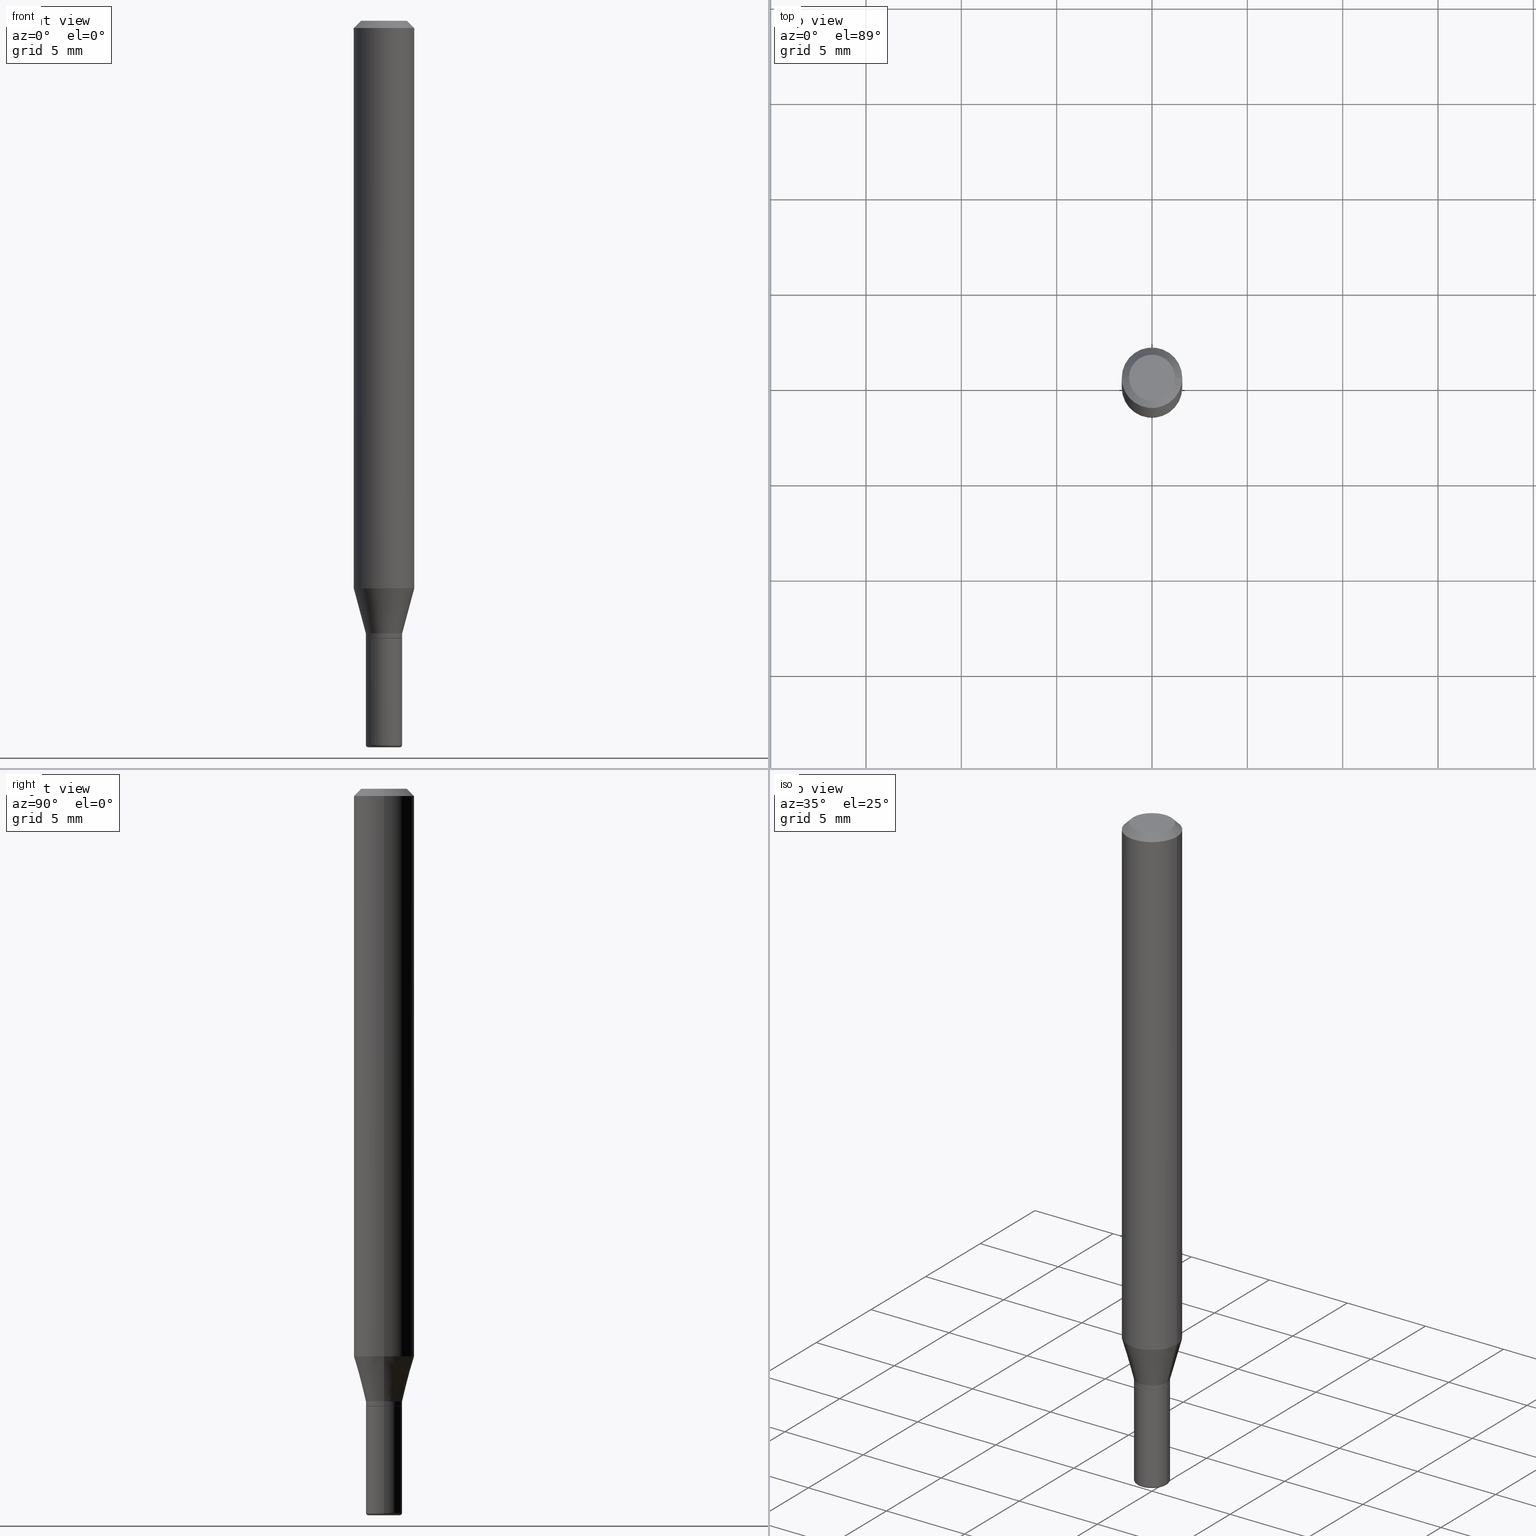
[diagram: canonical four-view strip — front | top / right | iso, engineering-drawing reading convention]
A machine part, canonical four-view strip (front | top / right | iso — engineering-drawing reading convention). The complete STEP part file that produces these views, byte-faithful:
ISO-10303-21;
HEADER;
FILE_DESCRIPTION (( 'STEP AP203' ),
    '1' );
FILE_NAME ('09037.STEP',
    '2024-02-29T21:29:58',
    ( '' ),
    ( '' ),
    'SwSTEP 2.0',
    'SolidWorks 2023',
    '' );
FILE_SCHEMA (( 'CONFIG_CONTROL_DESIGN' ));
ENDSEC;

DATA;
#1 = CARTESIAN_POINT ( 'NONE',  ( 0.000000000000000000, 0.000000000000000000, 0.000000000000000000 ) ) ;
#2 = AXIS2_PLACEMENT_3D ( 'NONE', #246, #204, #446 ) ;
#3 = LOCAL_TIME ( 16, 29, 58.00000000000000000, #504 ) ;
#4 = AXIS2_PLACEMENT_3D ( 'NONE', #106, #7, #511 ) ;
#5 = FACE_OUTER_BOUND ( 'NONE', #501, .T. ) ;
#6 = AXIS2_PLACEMENT_3D ( 'NONE', #113, #281, #346 ) ;
#7 = DIRECTION ( 'NONE',  ( 2.445468806185136597E-29, -3.491481338843145583E-15, -1.000000000000000000 ) ) ;
#8 = ORIENTED_EDGE ( 'NONE', *, *, #276, .F. ) ;
#9 = DIRECTION ( 'NONE',  ( 1.000000000000000000, -6.982962677686259611E-15, 0.000000000000000000 ) ) ;
#10 = EDGE_CURVE ( 'NONE', #176, #22, #318, .T. ) ;
#11 = LINE ( 'NONE', #449, #231 ) ;
#12 = AXIS2_PLACEMENT_3D ( 'NONE', #481, #50, #320 ) ;
#13 = PERSON_AND_ORGANIZATION ( #295, #26 ) ;
#14 = DIRECTION ( 'NONE',  ( -2.445468806185136877E-29, 3.491481338843145188E-15, 1.000000000000000000 ) ) ;
#15 = PERSON_AND_ORGANIZATION ( #295, #26 ) ;
#16 = DIRECTION ( 'NONE',  ( 1.000000000000000000, -6.982962677686277755E-15, 0.000000000000000000 ) ) ;
#17 = APPROVAL_STATUS ( 'not_yet_approved' ) ;
#18 = ORIENTED_EDGE ( 'NONE', *, *, #174, .F. ) ;
#19 = MANIFOLD_SOLID_BREP ( 'Body-Move/Copy2[2]', #398 ) ;
#20 = DIRECTION ( 'NONE',  ( 1.000000000000000000, -6.982962677686261189E-15, 4.883557194083111219E-29 ) ) ;
#21 =( LENGTH_UNIT ( ) NAMED_UNIT ( * ) SI_UNIT ( $, .METRE. ) );
#22 = VERTEX_POINT ( 'NONE', #44 ) ;
#23 = DIRECTION ( 'NONE',  ( 1.000000000000000000, -6.982962677686261189E-15, 0.000000000000000000 ) ) ;
#24 = ORIENTED_EDGE ( 'NONE', *, *, #493, .T. ) ;
#25 = CIRCLE ( 'NONE', #255, 0.03249999999999999417 ) ;
#26 = ORGANIZATION ( 'UNSPECIFIED', 'UNSPECIFIED', '' ) ;
#27 = EDGE_CURVE ( 'NONE', #69, #144, #74, .T. ) ;
#28 = ORIENTED_EDGE ( 'NONE', *, *, #219, .T. ) ;
#29 = ADVANCED_FACE ( 'NONE', ( #363 ), #309, .F. ) ;
#30 = CARTESIAN_POINT ( 'NONE',  ( 0.03750000000000008882, -2.618611004132355933E-16, 1.828566290923480126E-30 ) ) ;
#31 = CARTESIAN_POINT ( 'NONE',  ( 2.865352693999005712E-29, -4.090964249880549639E-15, -1.171698729810778605 ) ) ;
#32 = CARTESIAN_POINT ( 'NONE',  ( -0.06250000000000000000, -3.646875040030487022E-15, -1.171698729810778605 ) ) ;
#33 = FACE_OUTER_BOUND ( 'NONE', #275, .T. ) ;
#34 = ORIENTED_EDGE ( 'NONE', *, *, #287, .T. ) ;
#35 = CIRCLE ( 'NONE', #327, 0.03700000000000008837 ) ;
#36 = AXIS2_PLACEMENT_3D ( 'NONE', #420, #55, #16 ) ;
#37 = LINE ( 'NONE', #313, #149 ) ;
#38 = CARTESIAN_POINT ( 'NONE',  ( 0.000000000000000000, 0.000000000000000000, 0.000000000000000000 ) ) ;
#39 = CYLINDRICAL_SURFACE ( 'NONE', #293, 0.03750000000000008882 ) ;
#40 = DIRECTION ( 'NONE',  ( 1.000000000000000000, -6.982962677686264344E-15, 0.000000000000000000 ) ) ;
#41 = AXIS2_PLACEMENT_3D ( 'NONE', #1, #274, #517 ) ;
#42 = DIRECTION ( 'NONE',  ( 1.000000000000000000, -6.982962677686265922E-15, 4.876176775795935793E-29 ) ) ;
#43 = DIRECTION ( 'NONE',  ( 1.000000000000000000, -6.982962677686259611E-15, 0.000000000000000000 ) ) ;
#44 = CARTESIAN_POINT ( 'NONE',  ( 0.03749999999999999861, -4.713499807438246596E-15, -1.275000000000000133 ) ) ;
#45 = ADVANCED_FACE ( 'NONE', ( #347 ), #380, .T. ) ;
#46 = CARTESIAN_POINT ( 'NONE',  ( 3.093518039824198624E-29, -4.416723893636579945E-15, -1.265000000000000346 ) ) ;
#47 = EDGE_CURVE ( 'NONE', #94, #72, #158, .T. ) ;
#48 = CARTESIAN_POINT ( 'NONE',  ( -0.04750000000000000749, 3.578768372314221353E-16, 2.731847993664239060E-16 ) ) ;
#49 = AXIS2_PLACEMENT_3D ( 'NONE', #208, #362, #104 ) ;
#50 = DIRECTION ( 'NONE',  ( -2.445468806185136597E-29, 3.491481338843145583E-15, 1.000000000000000000 ) ) ;
#51 = PERSON_AND_ORGANIZATION_ROLE ( 'design_supplier' ) ;
#52 = ORIENTED_EDGE ( 'NONE', *, *, #174, .T. ) ;
#53 = ADVANCED_FACE ( 'NONE', ( #299 ), #459, .F. ) ;
#54 = CARTESIAN_POINT ( 'NONE',  ( -0.03750000000000008882, -4.183439440445551890E-15, -1.274500000000000188 ) ) ;
#55 = DIRECTION ( 'NONE',  ( -2.445468806185136597E-29, 3.491481338843145583E-15, 1.000000000000000000 ) ) ;
#56 = ADVANCED_FACE ( 'NONE', ( #262 ), #423, .F. ) ;
#57 = ORIENTED_EDGE ( 'NONE', *, *, #285, .T. ) ;
#58 = DIMENSIONAL_EXPONENTS ( 1.000000000000000000, 0.000000000000000000, 0.000000000000000000, 0.000000000000000000, 0.000000000000000000, 0.000000000000000000, 0.000000000000000000 ) ;
#59 = ORIENTED_EDGE ( 'NONE', *, *, #119, .F. ) ;
#60 = ORIENTED_EDGE ( 'NONE', *, *, #47, .F. ) ;
#61 = DIRECTION ( 'NONE',  ( 1.000000000000000000, -6.982962677686262766E-15, 0.000000000000000000 ) ) ;
#62 = VECTOR ( 'NONE', #245, 39.37007874015748143 ) ;
#63 = ADVANCED_FACE ( 'NONE', ( #109 ), #413, .T. ) ;
#64 = EDGE_LOOP ( 'NONE', ( #304, #235, #99, #507 ) ) ;
#65 = VECTOR ( 'NONE', #371, 39.37007874015748143 ) ;
#66 = ORIENTED_EDGE ( 'NONE', *, *, #470, .T. ) ;
#67 = DIRECTION ( 'NONE',  ( -2.445468806185136597E-29, 3.491481338843145583E-15, 1.000000000000000000 ) ) ;
#68 = APPROVAL_ROLE ( '' ) ;
#69 = VERTEX_POINT ( 'NONE', #201 ) ;
#70 = CARTESIAN_POINT ( 'NONE',  ( -6.680649051745406845E-45, 9.538196290434862081E-31, 2.731847993664263218E-16 ) ) ;
#71 = FACE_OUTER_BOUND ( 'NONE', #393, .T. ) ;
#72 = VERTEX_POINT ( 'NONE', #359 ) ;
#73 = DIRECTION ( 'NONE',  ( -2.445468806185136597E-29, 3.491481338843145583E-15, 1.000000000000000000 ) ) ;
#74 = CIRCLE ( 'NONE', #427, 0.06250000000000000000 ) ;
#75 = VECTOR ( 'NONE', #349, 39.37007874015748143 ) ;
#76 = CYLINDRICAL_SURFACE ( 'NONE', #41, 0.03750000000000007494 ) ;
#77 = DIRECTION ( 'NONE',  ( -2.445468806185136597E-29, 3.491481338843145583E-15, 1.000000000000000000 ) ) ;
#78 = DIRECTION ( 'NONE',  ( -1.000000000000000000, 6.982962677686266711E-15, 0.000000000000000000 ) ) ;
#79 = DIRECTION ( 'NONE',  ( -2.445468806185136597E-29, 3.491481338843145583E-15, 1.000000000000000000 ) ) ;
#80 = CARTESIAN_POINT ( 'NONE',  ( 0.06250000000000000000, -4.527399417235941308E-15, -1.171698729810778605 ) ) ;
#81 = DIRECTION ( 'NONE',  ( 1.000000000000000000, -6.982962677686264344E-15, 0.000000000000000000 ) ) ;
#82 = EDGE_CURVE ( 'NONE', #372, #144, #37, .T. ) ;
#83 = ORIENTED_EDGE ( 'NONE', *, *, #276, .T. ) ;
#84 = CLOSED_SHELL ( 'NONE', ( #45, #368, #53, #339, #63, #29 ) ) ;
#85 = CYLINDRICAL_SURFACE ( 'NONE', #12, 0.03750000000000007494 ) ;
#86 = PERSON_AND_ORGANIZATION_ROLE ( 'creator' ) ;
#87 = ADVANCED_FACE ( 'NONE', ( #476 ), #477, .T. ) ;
#88 = AXIS2_PLACEMENT_3D ( 'NONE', #406, #150, #379 ) ;
#89 = AXIS2_PLACEMENT_3D ( 'NONE', #332, #513, #414 ) ;
#90 = DIRECTION ( 'NONE',  ( -2.445468806185136597E-29, 3.491481338843145583E-15, 1.000000000000000000 ) ) ;
#91 = EDGE_CURVE ( 'NONE', #239, #272, #206, .T. ) ;
#92 = DESIGN_CONTEXT ( 'detailed design', #492, 'design' ) ;
#93 = CARTESIAN_POINT ( 'NONE',  ( -0.03700000000000008837, -4.186088667619663091E-15, -1.275000000000000133 ) ) ;
#94 = VERTEX_POINT ( 'NONE', #271 ) ;
#95 = ADVANCED_FACE ( 'NONE', ( #33 ), #76, .T. ) ;
#96 = CALENDAR_DATE ( 2024, 29, 2 ) ;
#97 = CALENDAR_DATE ( 2024, 29, 2 ) ;
#98 = CARTESIAN_POINT ( 'NONE',  ( 0.03700000000000008837, -4.710008326099403589E-15, -1.275000000000000133 ) ) ;
#99 = ORIENTED_EDGE ( 'NONE', *, *, #464, .T. ) ;
#100 = VERTEX_POINT ( 'NONE', #435 ) ;
#101 = CARTESIAN_POINT ( 'NONE',  ( 0.03750000000000006800, -4.678584994049814947E-15, -1.265000000000000346 ) ) ;
#102 = CIRCLE ( 'NONE', #259, 0.06250000000000000000 ) ;
#103 = ORIENTED_EDGE ( 'NONE', *, *, #171, .T. ) ;
#104 = DIRECTION ( 'NONE',  ( 1.000000000000000000, -6.982962677686268288E-15, 0.000000000000000000 ) ) ;
#105 = ORIENTED_EDGE ( 'NONE', *, *, #470, .F. ) ;
#106 = CARTESIAN_POINT ( 'NONE',  ( 3.668203209277632395E-31, -5.237222008264614861E-17, -0.01499999999999970281 ) ) ;
#107 = ORIENTED_EDGE ( 'NONE', *, *, #91, .T. ) ;
#108 = VECTOR ( 'NONE', #234, 39.37007874015748143 ) ;
#109 = FACE_OUTER_BOUND ( 'NONE', #64, .T. ) ;
#110 = SECURITY_CLASSIFICATION ( '', '', #173 ) ;
#111 = AXIS2_PLACEMENT_3D ( 'NONE', #335, #495, #23 ) ;
#112 = AXIS2_PLACEMENT_3D ( 'NONE', #126, #403, #131 ) ;
#113 = CARTESIAN_POINT ( 'NONE',  ( 3.116749993482957368E-29, -4.449892966355590090E-15, -1.274500000000000188 ) ) ;
#114 = FACE_OUTER_BOUND ( 'NONE', #345, .T. ) ;
#115 = VERTEX_POINT ( 'NONE', #189 ) ;
#116 = CARTESIAN_POINT ( 'NONE',  ( 0.000000000000000000, 0.000000000000000000, 0.000000000000000000 ) ) ;
#117 = ADVANCED_FACE ( 'NONE', ( #71 ), #142, .T. ) ;
#118 = CARTESIAN_POINT ( 'NONE',  ( 3.093518039824198624E-29, -4.416723893636579945E-15, -1.265000000000000346 ) ) ;
#119 = EDGE_CURVE ( 'NONE', #144, #69, #102, .T. ) ;
#120 = ORIENTED_EDGE ( 'NONE', *, *, #196, .T. ) ;
#121 = DIRECTION ( 'NONE',  ( -2.438088387897960049E-29, 3.491481338843145188E-15, 1.000000000000000000 ) ) ;
#122 = AXIS2_PLACEMENT_3D ( 'NONE', #178, #418, #20 ) ;
#123 = CIRCLE ( 'NONE', #112, 0.005000000000000181383 ) ;
#124 = CYLINDRICAL_SURFACE ( 'NONE', #386, 0.03750000000000008882 ) ;
#125 = EDGE_CURVE ( 'NONE', #355, #144, #438, .T. ) ;
#126 = CARTESIAN_POINT ( 'NONE',  ( 0.03249999999999999417, -5.446710888595306494E-15, -1.495000000000000107 ) ) ;
#127 = ORIENTED_EDGE ( 'NONE', *, *, #47, .T. ) ;
#128 = DIRECTION ( 'NONE',  ( 1.000000000000000000, -6.982962677686255667E-15, 0.000000000000000000 ) ) ;
#129 = APPROVAL_DATE_TIME ( #211, #366 ) ;
#130 = VECTOR ( 'NONE', #260, 39.37007874015748143 ) ;
#131 = DIRECTION ( 'NONE',  ( 1.000000000000000000, -6.982962677686273810E-15, 0.000000000000000000 ) ) ;
#132 = AXIS2_PLACEMENT_3D ( 'NONE', #283, #79, #198 ) ;
#133 = EDGE_LOOP ( 'NONE', ( #216, #226 ) ) ;
#134 = AXIS2_PLACEMENT_3D ( 'NONE', #172, #90, #381 ) ;
#135 = CC_DESIGN_DATE_AND_TIME_ASSIGNMENT ( #220, #290, ( #244 ) ) ;
#136 = LENGTH_MEASURE_WITH_UNIT ( LENGTH_MEASURE( 0.02539999999999999897 ), #21 );
#137 = APPROVAL_ROLE ( '' ) ;
#138 = ORIENTED_EDGE ( 'NONE', *, *, #285, .F. ) ;
#139 = LINE ( 'NONE', #300, #108 ) ;
#140 = APPROVAL_PERSON_ORGANIZATION ( #13, #434, #180 ) ;
#141 = EDGE_LOOP ( 'NONE', ( #232, #229, #60, #467 ) ) ;
#142 = CONICAL_SURFACE ( 'NONE', #485, 0.03750000000000006800, 0.2617993877991490748 ) ;
#143 = AXIS2_PLACEMENT_3D ( 'NONE', #282, #321, #78 ) ;
#144 = VERTEX_POINT ( 'NONE', #353 ) ;
#145 = APPROVAL ( #497, 'UNSPECIFIED' ) ;
#146 = EDGE_LOOP ( 'NONE', ( #498, #83, #509, #506 ) ) ;
#147 = EDGE_CURVE ( 'NONE', #514, #100, #35, .T. ) ;
#148 = FACE_OUTER_BOUND ( 'NONE', #474, .T. ) ;
#149 = VECTOR ( 'NONE', #440, 39.37007874015748143 ) ;
#150 = DIRECTION ( 'NONE',  ( -2.438088387897960049E-29, 3.491481338843145188E-15, 1.000000000000000000 ) ) ;
#151 = CC_DESIGN_DATE_AND_TIME_ASSIGNMENT ( #378, #374, ( #110 ) ) ;
#152 = ORIENTED_EDGE ( 'NONE', *, *, #249, .T. ) ;
#153 = DIRECTION ( 'NONE',  ( -2.445468806185136597E-29, 3.491481338843145583E-15, 1.000000000000000000 ) ) ;
#154 = DIRECTION ( 'NONE',  ( 1.000000000000000000, -6.982962677686261189E-15, 0.000000000000000000 ) ) ;
#155 = DIRECTION ( 'NONE',  ( -2.445468806185136597E-29, 3.491481338843145583E-15, 1.000000000000000000 ) ) ;
#156 = AXIS2_PLACEMENT_3D ( 'NONE', #233, #308, #81 ) ;
#157 = DIRECTION ( 'NONE',  ( 1.000000000000000000, -6.982962677686255667E-15, 0.000000000000000000 ) ) ;
#158 = CIRCLE ( 'NONE', #111, 0.03750000000000017902 ) ;
#159 = CONICAL_SURFACE ( 'NONE', #143, 0.06250000000000000000, 0.7853981633974488341 ) ;
#160 = ADVANCED_FACE ( 'NONE', ( #148 ), #442, .T. ) ;
#161 = PLANE ( 'NONE',  #360 ) ;
#162 = DIRECTION ( 'NONE',  ( 1.000000000000000000, -6.982962677686262766E-15, 0.000000000000000000 ) ) ;
#163 = ORIENTED_EDGE ( 'NONE', *, *, #27, .T. ) ;
#164 = FACE_OUTER_BOUND ( 'NONE', #225, .T. ) ;
#165 = DIRECTION ( 'NONE',  ( 1.000000000000000000, -6.982962677686255667E-15, 0.000000000000000000 ) ) ;
#166 = AXIS2_PLACEMENT_3D ( 'NONE', #38, #515, #357 ) ;
#167 = CIRCLE ( 'NONE', #156, 0.03700000000000008837 ) ;
#168 = LINE ( 'NONE', #328, #62 ) ;
#169 = CARTESIAN_POINT ( 'NONE',  ( 3.117972727886049049E-29, -4.451638707025011594E-15, -1.275000000000000133 ) ) ;
#170 = ORIENTED_EDGE ( 'NONE', *, *, #301, .F. ) ;
#171 = EDGE_CURVE ( 'NONE', #355, #314, #462, .T. ) ;
#172 = CARTESIAN_POINT ( 'NONE',  ( 0.000000000000000000, 0.000000000000000000, 0.000000000000000000 ) ) ;
#173 = SECURITY_CLASSIFICATION_LEVEL ( 'unclassified' ) ;
#174 = EDGE_CURVE ( 'NONE', #272, #355, #319, .T. ) ;
#175 = AXIS2_PLACEMENT_3D ( 'NONE', #395, #73, #404 ) ;
#176 = VERTEX_POINT ( 'NONE', #350 ) ;
#177 = CALENDAR_DATE ( 2024, 29, 2 ) ;
#178 = CARTESIAN_POINT ( 'NONE',  ( 3.655975865246779122E-29, -5.219764601570503141E-15, -1.495000000000000107 ) ) ;
#179 = APPROVAL_DATE_TIME ( #384, #145 ) ;
#180 = APPROVAL_ROLE ( '' ) ;
#181 = DIRECTION ( 'NONE',  ( -1.000000000000000000, 6.982962677686265922E-15, -4.876176775795935793E-29 ) ) ;
#182 = VERTEX_POINT ( 'NONE', #479 ) ;
#183 = VECTOR ( 'NONE', #312, 39.37007874015748143 ) ;
#184 = CIRCLE ( 'NONE', #242, 0.04750000000000000749 ) ;
#185 = ORIENTED_EDGE ( 'NONE', *, *, #10, .F. ) ;
#186 = CARTESIAN_POINT ( 'NONE',  ( 3.655975865246778562E-29, -5.219764601570502352E-15, -1.494999999999999662 ) ) ;
#187 = ADVANCED_FACE ( 'NONE', ( #114 ), #159, .T. ) ;
#188 = CARTESIAN_POINT ( 'NONE',  ( 2.865352693999005712E-29, -4.090964249880549639E-15, -1.171698729810778605 ) ) ;
#189 = CARTESIAN_POINT ( 'NONE',  ( 0.03249999999999999417, -5.464168295289523107E-15, -1.500000000000000444 ) ) ;
#190 = PERSON_AND_ORGANIZATION_ROLE ( 'creator' ) ;
#191 = ORIENTED_EDGE ( 'NONE', *, *, #196, .F. ) ;
#192 = EDGE_CURVE ( 'NONE', #471, #72, #428, .T. ) ;
#193 = LINE ( 'NONE', #352, #344 ) ;
#194 = AXIS2_PLACEMENT_3D ( 'NONE', #354, #278, #400 ) ;
#195 = DIRECTION ( 'NONE',  ( -2.445468806185136597E-29, 3.491481338843145583E-15, 1.000000000000000000 ) ) ;
#196 = EDGE_CURVE ( 'NONE', #100, #514, #167, .T. ) ;
#197 = AXIS2_PLACEMENT_3D ( 'NONE', #508, #67, #433 ) ;
#198 = DIRECTION ( 'NONE',  ( 1.000000000000000000, -6.982962677686268288E-15, 0.000000000000000000 ) ) ;
#199 = EDGE_LOOP ( 'NONE', ( #28, #424 ) ) ;
#200 = CARTESIAN_POINT ( 'NONE',  ( 3.093518039824198624E-29, -4.416723893636579945E-15, -1.265000000000000346 ) ) ;
#201 = CARTESIAN_POINT ( 'NONE',  ( -0.06250000000000000000, -1.627579025131535151E-15, -0.01499999999999970281 ) ) ;
#202 = DIRECTION ( 'NONE',  ( 1.000000000000000000, -6.982962677686266711E-15, 0.000000000000000000 ) ) ;
#203 = DIRECTION ( 'NONE',  ( -2.445468806185136597E-29, 3.491481338843145583E-15, 1.000000000000000000 ) ) ;
#204 = DIRECTION ( 'NONE',  ( 7.105427357601001859E-15, 1.000000000000000000, -3.491481338843145583E-15 ) ) ;
#205 = LOCAL_TIME ( 16, 29, 58.00000000000000000, #333 ) ;
#206 = CIRCLE ( 'NONE', #267, 0.03750000000000006800 ) ;
#207 = PRODUCT ( '09037', '09037', '', ( #417 ) ) ;
#208 = CARTESIAN_POINT ( 'NONE',  ( 3.117972727886049049E-29, -4.451638707025011594E-15, -1.275000000000000133 ) ) ;
#209 = CARTESIAN_POINT ( 'NONE',  ( -0.03750000000000007494, 2.664535259100381022E-16, -1.844600658845593312E-30 ) ) ;
#210 = CARTESIAN_POINT ( 'NONE',  ( 0.04750000000000000749, -4.035134999187568762E-16, 2.731847993664288856E-16 ) ) ;
#211 = DATE_AND_TIME ( #97, #205 ) ;
#212 = CIRCLE ( 'NONE', #6, 0.03750000000000008882 ) ;
#213 = EDGE_CURVE ( 'NONE', #115, #471, #25, .T. ) ;
#214 = CIRCLE ( 'NONE', #478, 0.03249999999999999417 ) ;
#215 = CARTESIAN_POINT ( 'NONE',  ( 3.668203209277706016E-29, -5.237222008264719754E-15, -1.500000000000000444 ) ) ;
#216 = ORIENTED_EDGE ( 'NONE', *, *, #213, .F. ) ;
#217 = CC_DESIGN_PERSON_AND_ORGANIZATION_ASSIGNMENT ( #253, #51, ( #512 ) ) ;
#218 = ORIENTED_EDGE ( 'NONE', *, *, #27, .F. ) ;
#219 = EDGE_CURVE ( 'NONE', #22, #176, #296, .T. ) ;
#220 = DATE_AND_TIME ( #258, #503 ) ;
#221 = UNCERTAINTY_MEASURE_WITH_UNIT (LENGTH_MEASURE( 1.000000000000000082E-05 ), #256, 'distance_accuracy_value', 'NONE');
#222 = CARTESIAN_POINT ( 'NONE',  ( -0.06250000000000000000, 4.440892098500626162E-16, -3.074334431409316114E-30 ) ) ;
#223 = CARTESIAN_POINT ( 'NONE',  ( 2.618611004132661617E-16, 0.03749999999999554384, -1.275000000000000133 ) ) ;
#224 = COORDINATED_UNIVERSAL_TIME_OFFSET ( 5, 0, .BEHIND. ) ;
#225 = EDGE_LOOP ( 'NONE', ( #264, #152, #385, #185 ) ) ;
#226 = ORIENTED_EDGE ( 'NONE', *, *, #337, .F. ) ;
#227 = CONICAL_SURFACE ( 'NONE', #502, 0.03750000000000006800, 0.2617993877991490748 ) ;
#228 = APPROVAL_PERSON_ORGANIZATION ( #461, #366, #137 ) ;
#229 = ORIENTED_EDGE ( 'NONE', *, *, #192, .T. ) ;
#230 = AXIS2_PLACEMENT_3D ( 'NONE', #223, #466, #181 ) ;
#231 = VECTOR ( 'NONE', #411, 39.37007874015748143 ) ;
#232 = ORIENTED_EDGE ( 'NONE', *, *, #213, .T. ) ;
#233 = CARTESIAN_POINT ( 'NONE',  ( 3.117972727886049049E-29, -4.451638707025011594E-15, -1.275000000000000133 ) ) ;
#234 = DIRECTION ( 'NONE',  ( -0.7071067811865479058, 2.468850131082261005E-15, -0.7071067811865471286 ) ) ;
#235 = ORIENTED_EDGE ( 'NONE', *, *, #337, .T. ) ;
#236 = DIRECTION ( 'NONE',  ( -2.445468806185136597E-29, 3.491481338843145583E-15, 1.000000000000000000 ) ) ;
#237 = DIRECTION ( 'NONE',  ( 1.000000000000000000, -6.982962677686266711E-15, 0.000000000000000000 ) ) ;
#238 = ORIENTED_EDGE ( 'NONE', *, *, #455, .F. ) ;
#239 = VERTEX_POINT ( 'NONE', #437 ) ;
#240 = LOCAL_TIME ( 16, 29, 58.00000000000000000, #460 ) ;
#241 = CARTESIAN_POINT ( 'NONE',  ( 3.668203209277632395E-31, -5.237222008264614861E-17, -0.01499999999999970281 ) ) ;
#242 = AXIS2_PLACEMENT_3D ( 'NONE', #70, #236, #394 ) ;
#243 = DIRECTION ( 'NONE',  ( 1.000000000000000000, -6.982962677686255667E-15, 0.000000000000000000 ) ) ;
#244 = PRODUCT_DEFINITION ( 'UNKNOWN', '', #512, #92 ) ;
#245 = DIRECTION ( 'NONE',  ( -2.445468806185136877E-29, 3.491481338843145188E-15, 1.000000000000000000 ) ) ;
#246 = CARTESIAN_POINT ( 'NONE',  ( -0.03249999999999999417, -4.988838212448470770E-15, -1.495000000000000107 ) ) ;
#247 = DIRECTION ( 'NONE',  ( -2.445468806185136597E-29, 3.491481338843145583E-15, 1.000000000000000000 ) ) ;
#248 = CARTESIAN_POINT ( 'NONE',  ( 3.668203209277706016E-29, -5.237222008264719754E-15, -1.500000000000000444 ) ) ;
#249 = EDGE_CURVE ( 'NONE', #72, #94, #426, .T. ) ;
#250 = CC_DESIGN_PERSON_AND_ORGANIZATION_ASSIGNMENT ( #15, #488, ( #110 ) ) ;
#251 = CARTESIAN_POINT ( 'NONE',  ( 3.117972727886049049E-29, -4.451638707025011594E-15, -1.275000000000000133 ) ) ;
#252 = CARTESIAN_POINT ( 'NONE',  ( 0.000000000000000000, 0.000000000000000000, 0.000000000000000000 ) ) ;
#253 = PERSON_AND_ORGANIZATION ( #295, #26 ) ;
#254 = EDGE_LOOP ( 'NONE', ( #127, #376, #518, #170 ) ) ;
#255 = AXIS2_PLACEMENT_3D ( 'NONE', #248, #409, #43 ) ;
#256 =( CONVERSION_BASED_UNIT ( 'INCH', #136 ) LENGTH_UNIT ( ) NAMED_UNIT ( #58 ) );
#257 = APPROVAL_DATE_TIME ( #421, #434 ) ;
#258 = CALENDAR_DATE ( 2024, 29, 2 ) ;
#259 = AXIS2_PLACEMENT_3D ( 'NONE', #241, #195, #237 ) ;
#260 = DIRECTION ( 'NONE',  ( 0.7071067811866199593, -2.468850131083015945E-15, 0.7071067811864750752 ) ) ;
#261 = CIRCLE ( 'NONE', #36, 0.03750000000000008882 ) ;
#262 = FACE_OUTER_BOUND ( 'NONE', #415, .T. ) ;
#263 = EDGE_LOOP ( 'NONE', ( #436, #341, #389, #18 ) ) ;
#264 = ORIENTED_EDGE ( 'NONE', *, *, #323, .F. ) ;
#265 = ORIENTED_EDGE ( 'NONE', *, *, #306, .T. ) ;
#266 = DIRECTION ( 'NONE',  ( -2.445468806185136597E-29, 3.491481338843145583E-15, 1.000000000000000000 ) ) ;
#267 = AXIS2_PLACEMENT_3D ( 'NONE', #200, #482, #157 ) ;
#268 = ADVANCED_FACE ( 'NONE', ( #356 ), #486, .T. ) ;
#269 = PERSON_AND_ORGANIZATION ( #295, #26 ) ;
#270 = ORIENTED_EDGE ( 'NONE', *, *, #487, .F. ) ;
#271 = CARTESIAN_POINT ( 'NONE',  ( 0.03750000000000017902, -5.481625701983738143E-15, -1.494999999999999662 ) ) ;
#272 = VERTEX_POINT ( 'NONE', #101 ) ;
#273 = ORIENTED_EDGE ( 'NONE', *, *, #287, .F. ) ;
#274 = DIRECTION ( 'NONE',  ( -2.445468806185136597E-29, 3.491481338843145583E-15, 1.000000000000000000 ) ) ;
#275 = EDGE_LOOP ( 'NONE', ( #280, #303, #326, #238 ) ) ;
#276 = EDGE_CURVE ( 'NONE', #494, #182, #212, .T. ) ;
#277 = VECTOR ( 'NONE', #402, 39.37007874015748143 ) ;
#278 = DIRECTION ( 'NONE',  ( 2.438088387897960049E-29, -3.491481338843145188E-15, -1.000000000000000000 ) ) ;
#279 =( GEOMETRIC_REPRESENTATION_CONTEXT ( 3 ) GLOBAL_UNCERTAINTY_ASSIGNED_CONTEXT ( ( #221 ) ) GLOBAL_UNIT_ASSIGNED_CONTEXT ( ( #256, #377, #331 ) ) REPRESENTATION_CONTEXT ( 'NONE', 'WORKASPACE' ) );
#280 = ORIENTED_EDGE ( 'NONE', *, *, #487, .T. ) ;
#281 = DIRECTION ( 'NONE',  ( -2.445468806185136597E-29, 3.491481338843145583E-15, 1.000000000000000000 ) ) ;
#282 = CARTESIAN_POINT ( 'NONE',  ( 3.668203209277632395E-31, -5.237222008264614861E-17, -0.01499999999999970281 ) ) ;
#283 = CARTESIAN_POINT ( 'NONE',  ( 3.117972727886049049E-29, -4.451638707025011594E-15, -1.275000000000000133 ) ) ;
#284 = CARTESIAN_POINT ( 'NONE',  ( 0.03750000000000006800, -4.678584994049814947E-15, -1.265000000000000346 ) ) ;
#285 = EDGE_CURVE ( 'NONE', #314, #355, #342, .T. ) ;
#286 = ORIENTED_EDGE ( 'NONE', *, *, #82, .T. ) ;
#287 = EDGE_CURVE ( 'NONE', #372, #444, #315, .T. ) ;
#288 = CARTESIAN_POINT ( 'NONE',  ( 3.093518039824198624E-29, -4.416723893636579945E-15, -1.265000000000000346 ) ) ;
#289 = LINE ( 'NONE', #209, #65 ) ;
#290 = DATE_TIME_ROLE ( 'creation_date' ) ;
#291 = ORIENTED_EDGE ( 'NONE', *, *, #82, .F. ) ;
#292 = CARTESIAN_POINT ( 'NONE',  ( -0.03249999999999999417, -4.979803347401575373E-15, -1.500000000000000444 ) ) ;
#293 = AXIS2_PLACEMENT_3D ( 'NONE', #252, #203, #450 ) ;
#294 = CC_DESIGN_SECURITY_CLASSIFICATION ( #110, ( #512 ) ) ;
#295 = PERSON ( 'UNSPECIFIED', 'UNSPECIFIED', 'UNSPECIFIED', ('UNSPECIFIED'), ('UNSPECIFIED'), ('UNSPECIFIED') ) ;
#296 = CIRCLE ( 'NONE', #49, 0.03749999999999999861 ) ;
#297 = LINE ( 'NONE', #222, #388 ) ;
#298 = PERSON_AND_ORGANIZATION ( #295, #26 ) ;
#299 = FACE_OUTER_BOUND ( 'NONE', #199, .T. ) ;
#300 = CARTESIAN_POINT ( 'NONE',  ( -0.06250000000000000000, 3.840629472727455270E-16, -0.01499999999999970281 ) ) ;
#301 = EDGE_CURVE ( 'NONE', #94, #22, #390, .T. ) ;
#302 = CIRCLE ( 'NONE', #505, 0.03750000000000006800 ) ;
#303 = ORIENTED_EDGE ( 'NONE', *, *, #334, .T. ) ;
#304 = ORIENTED_EDGE ( 'NONE', *, *, #192, .F. ) ;
#305 = CC_DESIGN_PERSON_AND_ORGANIZATION_ASSIGNMENT ( #451, #86, ( #512 ) ) ;
#306 = EDGE_CURVE ( 'NONE', #444, #372, #184, .T. ) ;
#307 = DIRECTION ( 'NONE',  ( -2.445468806185136597E-29, 3.491481338843145583E-15, 1.000000000000000000 ) ) ;
#308 = DIRECTION ( 'NONE',  ( -2.445468806185136597E-29, 3.491481338843145583E-15, 1.000000000000000000 ) ) ;
#309 = PLANE ( 'NONE',  #88 ) ;
#310 = ORIENTED_EDGE ( 'NONE', *, *, #484, .T. ) ;
#311 = DIRECTION ( 'NONE',  ( -2.445468806185136877E-29, 3.491481338843145188E-15, 1.000000000000000000 ) ) ;
#312 = DIRECTION ( 'NONE',  ( 0.2588190451025204064, 1.565188264969629659E-15, 0.9659258262890684232 ) ) ;
#313 = CARTESIAN_POINT ( 'NONE',  ( 0.06250000000000000000, -4.811533449433669144E-16, -0.01499999999999970281 ) ) ;
#314 = VERTEX_POINT ( 'NONE', #32 ) ;
#315 = CIRCLE ( 'NONE', #197, 0.04750000000000000749 ) ;
#316 = DIRECTION ( 'NONE',  ( 1.000000000000000000, -6.982962677686264344E-15, 0.000000000000000000 ) ) ;
#317 = LOCAL_TIME ( 16, 29, 58.00000000000000000, #224 ) ;
#318 = CIRCLE ( 'NONE', #132, 0.03749999999999999861 ) ;
#319 = LINE ( 'NONE', #284, #183 ) ;
#320 = DIRECTION ( 'NONE',  ( 1.000000000000000000, -6.982962677686267499E-15, 4.876176775795936353E-29 ) ) ;
#321 = DIRECTION ( 'NONE',  ( 2.445468806185136597E-29, -3.491481338843145583E-15, -1.000000000000000000 ) ) ;
#322 = FACE_OUTER_BOUND ( 'NONE', #146, .T. ) ;
#323 = EDGE_CURVE ( 'NONE', #72, #176, #193, .T. ) ;
#324 = PRODUCT_DEFINITION_SHAPE ( 'NONE', 'NONE',  #244 ) ;
#325 = FACE_OUTER_BOUND ( 'NONE', #263, .T. ) ;
#326 = ORIENTED_EDGE ( 'NONE', *, *, #405, .F. ) ;
#327 = AXIS2_PLACEMENT_3D ( 'NONE', #475, #472, #40 ) ;
#328 = CARTESIAN_POINT ( 'NONE',  ( 0.03750000000000007494, -2.618611004132355440E-16, 1.828566290923479776E-30 ) ) ;
#329 = DIRECTION ( 'NONE',  ( -2.445468806185136597E-29, 3.491481338843145583E-15, 1.000000000000000000 ) ) ;
#330 = EDGE_LOOP ( 'NONE', ( #120, #383, #270, #105 ) ) ;
#331 =( NAMED_UNIT ( * ) SI_UNIT ( $, .STERADIAN. ) SOLID_ANGLE_UNIT ( ) );
#332 = CARTESIAN_POINT ( 'NONE',  ( 0.000000000000000000, 0.000000000000000000, 0.000000000000000000 ) ) ;
#333 = COORDINATED_UNIVERSAL_TIME_OFFSET ( 5, 0, .BEHIND. ) ;
#334 = EDGE_CURVE ( 'NONE', #494, #239, #289, .T. ) ;
#335 = CARTESIAN_POINT ( 'NONE',  ( 3.655975865246778562E-29, -5.219764601570502352E-15, -1.494999999999999662 ) ) ;
#336 = APPLICATION_PROTOCOL_DEFINITION ( 'international standard', 'config_control_design', 1994, #492 ) ;
#337 = EDGE_CURVE ( 'NONE', #471, #115, #214, .T. ) ;
#338 = SHAPE_DEFINITION_REPRESENTATION ( #324, #373 ) ;
#339 = ADVANCED_FACE ( 'NONE', ( #164 ), #39, .T. ) ;
#340 = PERSON_AND_ORGANIZATION ( #295, #26 ) ;
#341 = ORIENTED_EDGE ( 'NONE', *, *, #416, .T. ) ;
#342 = CIRCLE ( 'NONE', #463, 0.06250000000000000000 ) ;
#343 = APPROVAL_PERSON_ORGANIZATION ( #298, #145, #68 ) ;
#344 = VECTOR ( 'NONE', #311, 39.37007874015748143 ) ;
#345 = EDGE_LOOP ( 'NONE', ( #273, #286, #469, #396 ) ) ;
#346 = DIRECTION ( 'NONE',  ( 1.000000000000000000, -6.982962677686277755E-15, 0.000000000000000000 ) ) ;
#347 = FACE_OUTER_BOUND ( 'NONE', #141, .T. ) ;
#348 = ORIENTED_EDGE ( 'NONE', *, *, #416, .F. ) ;
#349 = DIRECTION ( 'NONE',  ( -2.445468806185136877E-29, 3.491481338843145188E-15, 1.000000000000000000 ) ) ;
#350 = CARTESIAN_POINT ( 'NONE',  ( -0.03749999999999999861, -4.569248128387718378E-15, -1.275000000000000133 ) ) ;
#351 = LINE ( 'NONE', #98, #130 ) ;
#352 = CARTESIAN_POINT ( 'NONE',  ( -0.03750000000000008882, 2.664535259100382008E-16, -1.844600658845594012E-30 ) ) ;
#353 = CARTESIAN_POINT ( 'NONE',  ( 0.06250000000000000000, -4.888073874380378612E-16, -0.01499999999999970281 ) ) ;
#354 = CARTESIAN_POINT ( 'NONE',  ( 3.316907271900976589E-16, 0.04750000000000000749, -2.925296391183627249E-17 ) ) ;
#355 = VERTEX_POINT ( 'NONE', #80 ) ;
#356 = FACE_OUTER_BOUND ( 'NONE', #425, .T. ) ;
#357 = DIRECTION ( 'NONE',  ( 1.000000000000000000, -6.982962677686266711E-15, 4.876176775795935793E-29 ) ) ;
#358 = CONICAL_SURFACE ( 'NONE', #439, 0.03700000000000008837, 0.7853981633975507526 ) ;
#359 = CARTESIAN_POINT ( 'NONE',  ( -0.03750000000000017902, -4.569248128387716800E-15, -1.494999999999999662 ) ) ;
#360 = AXIS2_PLACEMENT_3D ( 'NONE', #169, #121, #42 ) ;
#361 = ADVANCED_FACE ( 'NONE', ( #322 ), #85, .T. ) ;
#362 = DIRECTION ( 'NONE',  ( -2.445468806185136597E-29, 3.491481338843145583E-15, 1.000000000000000000 ) ) ;
#363 = FACE_OUTER_BOUND ( 'NONE', #133, .T. ) ;
#364 = MANIFOLD_SOLID_BREP ( 'Body-Move/Copy2[1]', #84 ) ;
#365 = DIRECTION ( 'NONE',  ( -2.445468806185136597E-29, 3.491481338843145583E-15, 1.000000000000000000 ) ) ;
#366 = APPROVAL ( #17, 'UNSPECIFIED' ) ;
#367 = CC_DESIGN_APPROVAL ( #434, ( #110 ) ) ;
#368 = ADVANCED_FACE ( 'NONE', ( #408 ), #124, .T. ) ;
#369 = AXIS2_PLACEMENT_3D ( 'NONE', #31, #153, #162 ) ;
#370 = AXIS2_PLACEMENT_3D ( 'NONE', #186, #516, #154 ) ;
#371 = DIRECTION ( 'NONE',  ( -2.445468806185136877E-29, 3.491481338843145188E-15, 1.000000000000000000 ) ) ;
#372 = VERTEX_POINT ( 'NONE', #210 ) ;
#373 = ADVANCED_BREP_SHAPE_REPRESENTATION ( '09037', ( #364, #19, #89 ), #279 ) ;
#374 = DATE_TIME_ROLE ( 'classification_date' ) ;
#375 = APPLICATION_PROTOCOL_DEFINITION ( 'international standard', 'config_control_design', 1994, #468 ) ;
#376 = ORIENTED_EDGE ( 'NONE', *, *, #323, .T. ) ;
#377 =( NAMED_UNIT ( * ) PLANE_ANGLE_UNIT ( ) SI_UNIT ( $, .RADIAN. ) );
#378 = DATE_AND_TIME ( #499, #3 ) ;
#379 = DIRECTION ( 'NONE',  ( 1.000000000000000000, -6.982962677686265922E-15, 4.876176775795935793E-29 ) ) ;
#380 = TOROIDAL_SURFACE ( 'NONE', #122, 0.03249999999999999417, 0.005000000000000181383 ) ;
#381 = DIRECTION ( 'NONE',  ( 1.000000000000000000, -6.982962677686266711E-15, 4.876176775795935793E-29 ) ) ;
#382 = ADVANCED_FACE ( 'NONE', ( #5 ), #161, .F. ) ;
#383 = ORIENTED_EDGE ( 'NONE', *, *, #473, .T. ) ;
#384 = DATE_AND_TIME ( #96, #240 ) ;
#385 = ORIENTED_EDGE ( 'NONE', *, *, #301, .T. ) ;
#386 = AXIS2_PLACEMENT_3D ( 'NONE', #116, #483, #445 ) ;
#387 = CC_DESIGN_PERSON_AND_ORGANIZATION_ASSIGNMENT ( #269, #457, ( #207 ) ) ;
#388 = VECTOR ( 'NONE', #14, 39.37007874015748143 ) ;
#389 = ORIENTED_EDGE ( 'NONE', *, *, #171, .F. ) ;
#390 = LINE ( 'NONE', #30, #75 ) ;
#391 = CARTESIAN_POINT ( 'NONE',  ( 0.06250000000000000000, -4.364351673553916694E-16, 3.047610484872459871E-30 ) ) ;
#392 = CARTESIAN_POINT ( 'NONE',  ( -0.03700000000000008837, -4.188737894793773503E-15, -1.275000000000000133 ) ) ;
#393 = EDGE_LOOP ( 'NONE', ( #348, #107, #52, #138 ) ) ;
#394 = DIRECTION ( 'NONE',  ( 1.000000000000000000, -6.982962677686266711E-15, 4.852736867747365086E-29 ) ) ;
#395 = CARTESIAN_POINT ( 'NONE',  ( 3.655975865246779122E-29, -5.219764601570503141E-15, -1.495000000000000107 ) ) ;
#396 = ORIENTED_EDGE ( 'NONE', *, *, #493, .F. ) ;
#397 = ORIENTED_EDGE ( 'NONE', *, *, #473, .F. ) ;
#398 = CLOSED_SHELL ( 'NONE', ( #95, #401, #187, #160, #407, #117, #510, #87, #56, #382, #268, #361 ) ) ;
#399 = AXIS2_PLACEMENT_3D ( 'NONE', #430, #307, #316 ) ;
#400 = DIRECTION ( 'NONE',  ( -1.000000000000000000, 6.982962677686265922E-15, -4.876176775795935793E-29 ) ) ;
#401 = ADVANCED_FACE ( 'NONE', ( #448 ), #358, .T. ) ;
#402 = DIRECTION ( 'NONE',  ( -2.445468806185136877E-29, 3.491481338843145188E-15, 1.000000000000000000 ) ) ;
#403 = DIRECTION ( 'NONE',  ( -6.982962677686266711E-15, -1.000000000000000000, 3.491481338843145583E-15 ) ) ;
#404 = DIRECTION ( 'NONE',  ( 1.000000000000000000, -6.982962677686261189E-15, 4.883557194083111219E-29 ) ) ;
#405 = EDGE_CURVE ( 'NONE', #272, #239, #302, .T. ) ;
#406 = CARTESIAN_POINT ( 'NONE',  ( 3.582686580359767159E-29, -5.359686688179454114E-15, -1.500000000000000444 ) ) ;
#407 = ADVANCED_FACE ( 'NONE', ( #325 ), #227, .T. ) ;
#408 = FACE_OUTER_BOUND ( 'NONE', #254, .T. ) ;
#409 = DIRECTION ( 'NONE',  ( -2.445468806185136597E-29, 3.491481338843145583E-15, 1.000000000000000000 ) ) ;
#410 = DIRECTION ( 'NONE',  ( -2.445468806185136597E-29, 3.491481338843145583E-15, 1.000000000000000000 ) ) ;
#411 = DIRECTION ( 'NONE',  ( -0.2588190451025204064, 5.211531920934543942E-15, 0.9659258262890684232 ) ) ;
#412 = ORIENTED_EDGE ( 'NONE', *, *, #484, .F. ) ;
#413 = TOROIDAL_SURFACE ( 'NONE', #175, 0.03249999999999999417, 0.005000000000000181383 ) ;
#414 = DIRECTION ( 'NONE',  ( 1.000000000000000000, 0.000000000000000000, 0.000000000000000000 ) ) ;
#415 = EDGE_LOOP ( 'NONE', ( #265, #34 ) ) ;
#416 = EDGE_CURVE ( 'NONE', #239, #314, #11, .T. ) ;
#417 = MECHANICAL_CONTEXT ( 'NONE', #468, 'mechanical' ) ;
#418 = DIRECTION ( 'NONE',  ( -2.445468806185136597E-29, 3.491481338843145583E-15, 1.000000000000000000 ) ) ;
#419 = VECTOR ( 'NONE', #454, 39.37007874015748143 ) ;
#420 = CARTESIAN_POINT ( 'NONE',  ( 3.116749993482957368E-29, -4.449892966355590090E-15, -1.274500000000000188 ) ) ;
#421 = DATE_AND_TIME ( #177, #317 ) ;
#422 = ORIENTED_EDGE ( 'NONE', *, *, #125, .F. ) ;
#423 = PLANE ( 'NONE',  #194 ) ;
#424 = ORIENTED_EDGE ( 'NONE', *, *, #10, .T. ) ;
#425 = EDGE_LOOP ( 'NONE', ( #397, #480, #66, #8 ) ) ;
#426 = CIRCLE ( 'NONE', #370, 0.03750000000000017902 ) ;
#427 = AXIS2_PLACEMENT_3D ( 'NONE', #441, #247, #202 ) ;
#428 = CIRCLE ( 'NONE', #2, 0.005000000000000181383 ) ;
#429 = EDGE_LOOP ( 'NONE', ( #291, #496, #24, #163 ) ) ;
#430 = CARTESIAN_POINT ( 'NONE',  ( 3.117972727886049049E-29, -4.451638707025011594E-15, -1.275000000000000133 ) ) ;
#431 = CYLINDRICAL_SURFACE ( 'NONE', #134, 0.06250000000000000000 ) ;
#432 = ORIENTED_EDGE ( 'NONE', *, *, #147, .F. ) ;
#433 = DIRECTION ( 'NONE',  ( 1.000000000000000000, -6.982962677686266711E-15, 4.852736867747365086E-29 ) ) ;
#434 = APPROVAL ( #456, 'UNSPECIFIED' ) ;
#435 = CARTESIAN_POINT ( 'NONE',  ( 0.03700000000000008837, -4.710008326099403589E-15, -1.275000000000000133 ) ) ;
#436 = ORIENTED_EDGE ( 'NONE', *, *, #405, .T. ) ;
#437 = CARTESIAN_POINT ( 'NONE',  ( -0.03750000000000006800, -3.898572703878514383E-15, -1.265000000000000346 ) ) ;
#438 = LINE ( 'NONE', #391, #277 ) ;
#439 = AXIS2_PLACEMENT_3D ( 'NONE', #251, #410, #489 ) ;
#440 = DIRECTION ( 'NONE',  ( 0.7071067811865479058, -7.319954787623257623E-15, -0.7071067811865471286 ) ) ;
#441 = CARTESIAN_POINT ( 'NONE',  ( 3.668203209277632395E-31, -5.237222008264614861E-17, -0.01499999999999970281 ) ) ;
#442 = CYLINDRICAL_SURFACE ( 'NONE', #166, 0.06250000000000000000 ) ;
#443 = CC_DESIGN_PERSON_AND_ORGANIZATION_ASSIGNMENT ( #340, #190, ( #244 ) ) ;
#444 = VERTEX_POINT ( 'NONE', #48 ) ;
#445 = DIRECTION ( 'NONE',  ( 1.000000000000000000, -6.982962677686265922E-15, 4.876176775795935232E-29 ) ) ;
#446 = DIRECTION ( 'NONE',  ( -1.000000000000000000, 7.105427357601055501E-15, 0.000000000000000000 ) ) ;
#447 = CC_DESIGN_APPROVAL ( #366, ( #512 ) ) ;
#448 = FACE_OUTER_BOUND ( 'NONE', #330, .T. ) ;
#449 = CARTESIAN_POINT ( 'NONE',  ( -0.03750000000000006800, -4.150270367726541744E-15, -1.265000000000000346 ) ) ;
#450 = DIRECTION ( 'NONE',  ( 1.000000000000000000, -6.982962677686265922E-15, 4.876176775795935232E-29 ) ) ;
#451 = PERSON_AND_ORGANIZATION ( #295, #26 ) ;
#452 = ORIENTED_EDGE ( 'NONE', *, *, #125, .T. ) ;
#453 = CC_DESIGN_APPROVAL ( #145, ( #244 ) ) ;
#454 = DIRECTION ( 'NONE',  ( -0.7071067811866199593, 7.493145998870616062E-15, 0.7071067811864750752 ) ) ;
#455 = EDGE_CURVE ( 'NONE', #182, #272, #168, .T. ) ;
#456 = APPROVAL_STATUS ( 'not_yet_approved' ) ;
#457 = PERSON_AND_ORGANIZATION_ROLE ( 'design_owner' ) ;
#458 = EDGE_LOOP ( 'NONE', ( #412, #57, #452, #218 ) ) ;
#459 = PLANE ( 'NONE',  #230 ) ;
#460 = COORDINATED_UNIVERSAL_TIME_OFFSET ( 5, 0, .BEHIND. ) ;
#461 = PERSON_AND_ORGANIZATION ( #295, #26 ) ;
#462 = CIRCLE ( 'NONE', #369, 0.06250000000000000000 ) ;
#463 = AXIS2_PLACEMENT_3D ( 'NONE', #188, #266, #61 ) ;
#464 = EDGE_CURVE ( 'NONE', #115, #94, #123, .T. ) ;
#465 = FACE_OUTER_BOUND ( 'NONE', #458, .T. ) ;
#466 = DIRECTION ( 'NONE',  ( 2.438088387897960049E-29, -3.491481338843145188E-15, -1.000000000000000000 ) ) ;
#467 = ORIENTED_EDGE ( 'NONE', *, *, #464, .F. ) ;
#468 = APPLICATION_CONTEXT ( 'configuration controlled 3d designs of mechanical parts and assemblies' ) ;
#469 = ORIENTED_EDGE ( 'NONE', *, *, #119, .T. ) ;
#470 = EDGE_CURVE ( 'NONE', #100, #182, #351, .T. ) ;
#471 = VERTEX_POINT ( 'NONE', #292 ) ;
#472 = DIRECTION ( 'NONE',  ( -2.445468806185136597E-29, 3.491481338843145583E-15, 1.000000000000000000 ) ) ;
#473 = EDGE_CURVE ( 'NONE', #514, #494, #500, .T. ) ;
#474 = EDGE_LOOP ( 'NONE', ( #103, #310, #59, #422 ) ) ;
#475 = CARTESIAN_POINT ( 'NONE',  ( 3.117972727886049049E-29, -4.451638707025011594E-15, -1.275000000000000133 ) ) ;
#476 = FACE_OUTER_BOUND ( 'NONE', #429, .T. ) ;
#477 = CONICAL_SURFACE ( 'NONE', #4, 0.06250000000000000000, 0.7853981633974488341 ) ;
#478 = AXIS2_PLACEMENT_3D ( 'NONE', #215, #77, #9 ) ;
#479 = CARTESIAN_POINT ( 'NONE',  ( 0.03750000000000008882, -4.711754066768825881E-15, -1.274500000000000188 ) ) ;
#480 = ORIENTED_EDGE ( 'NONE', *, *, #147, .T. ) ;
#481 = CARTESIAN_POINT ( 'NONE',  ( 0.000000000000000000, 0.000000000000000000, 0.000000000000000000 ) ) ;
#482 = DIRECTION ( 'NONE',  ( -2.445468806185136597E-29, 3.491481338843145583E-15, 1.000000000000000000 ) ) ;
#483 = DIRECTION ( 'NONE',  ( -2.445468806185136597E-29, 3.491481338843145583E-15, 1.000000000000000000 ) ) ;
#484 = EDGE_CURVE ( 'NONE', #314, #69, #297, .T. ) ;
#485 = AXIS2_PLACEMENT_3D ( 'NONE', #118, #155, #243 ) ;
#486 = CONICAL_SURFACE ( 'NONE', #399, 0.03700000000000008837, 0.7853981633975507526 ) ;
#487 = EDGE_CURVE ( 'NONE', #182, #494, #261, .T. ) ;
#488 = PERSON_AND_ORGANIZATION_ROLE ( 'classification_officer' ) ;
#489 = DIRECTION ( 'NONE',  ( 1.000000000000000000, -6.982962677686264344E-15, 0.000000000000000000 ) ) ;
#490 = COORDINATED_UNIVERSAL_TIME_OFFSET ( 5, 0, .BEHIND. ) ;
#491 = PRODUCT_RELATED_PRODUCT_CATEGORY ( 'detail', '', ( #207 ) ) ;
#492 = APPLICATION_CONTEXT ( 'configuration controlled 3d designs of mechanical parts and assemblies' ) ;
#493 = EDGE_CURVE ( 'NONE', #444, #69, #139, .T. ) ;
#494 = VERTEX_POINT ( 'NONE', #54 ) ;
#495 = DIRECTION ( 'NONE',  ( -2.445468806185136597E-29, 3.491481338843145583E-15, 1.000000000000000000 ) ) ;
#496 = ORIENTED_EDGE ( 'NONE', *, *, #306, .F. ) ;
#497 = APPROVAL_STATUS ( 'not_yet_approved' ) ;
#498 = ORIENTED_EDGE ( 'NONE', *, *, #334, .F. ) ;
#499 = CALENDAR_DATE ( 2024, 29, 2 ) ;
#500 = LINE ( 'NONE', #392, #419 ) ;
#501 = EDGE_LOOP ( 'NONE', ( #191, #432 ) ) ;
#502 = AXIS2_PLACEMENT_3D ( 'NONE', #288, #365, #128 ) ;
#503 = LOCAL_TIME ( 16, 29, 58.00000000000000000, #490 ) ;
#504 = COORDINATED_UNIVERSAL_TIME_OFFSET ( 5, 0, .BEHIND. ) ;
#505 = AXIS2_PLACEMENT_3D ( 'NONE', #46, #329, #165 ) ;
#506 = ORIENTED_EDGE ( 'NONE', *, *, #91, .F. ) ;
#507 = ORIENTED_EDGE ( 'NONE', *, *, #249, .F. ) ;
#508 = CARTESIAN_POINT ( 'NONE',  ( -6.680649051745406845E-45, 9.538196290434862081E-31, 2.731847993664263218E-16 ) ) ;
#509 = ORIENTED_EDGE ( 'NONE', *, *, #455, .T. ) ;
#510 = ADVANCED_FACE ( 'NONE', ( #465 ), #431, .T. ) ;
#511 = DIRECTION ( 'NONE',  ( -1.000000000000000000, 6.982962677686266711E-15, 0.000000000000000000 ) ) ;
#512 = PRODUCT_DEFINITION_FORMATION_WITH_SPECIFIED_SOURCE ( 'ANY', '', #207, .NOT_KNOWN. ) ;
#513 = DIRECTION ( 'NONE',  ( 0.000000000000000000, 0.000000000000000000, 1.000000000000000000 ) ) ;
#514 = VERTEX_POINT ( 'NONE', #93 ) ;
#515 = DIRECTION ( 'NONE',  ( -2.445468806185136597E-29, 3.491481338843145583E-15, 1.000000000000000000 ) ) ;
#516 = DIRECTION ( 'NONE',  ( -2.445468806185136597E-29, 3.491481338843145583E-15, 1.000000000000000000 ) ) ;
#517 = DIRECTION ( 'NONE',  ( 1.000000000000000000, -6.982962677686267499E-15, 4.876176775795936353E-29 ) ) ;
#518 = ORIENTED_EDGE ( 'NONE', *, *, #219, .F. ) ;
ENDSEC;
END-ISO-10303-21;
